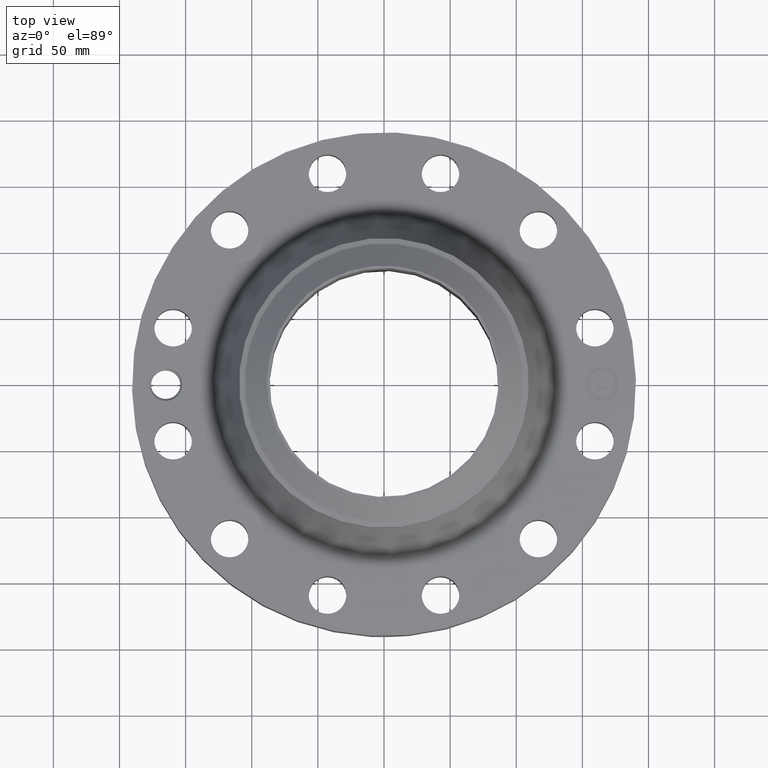
[diagram: clean part render]
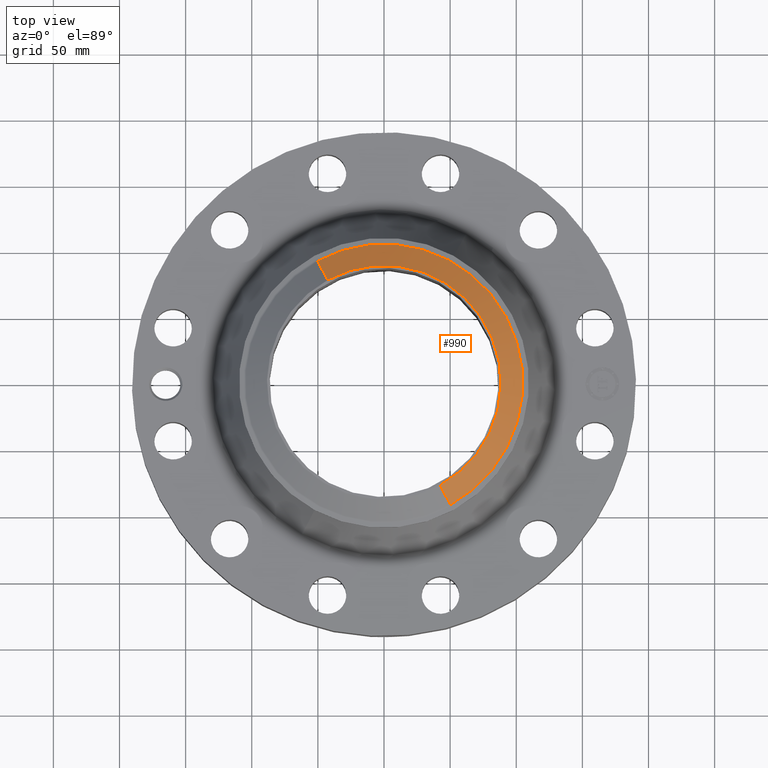
[diagram: same view with one face highlighted and labeled with its STEP entity id]
A machine part, top view. The second image highlights one B-rep face of the part: STEP entity #990.
In plain terms, the highlighted conical surface has half-angle 52.5 deg.
Its self-contained STEP definition (entity closure, byte-faithful):
#515=AXIS2_PLACEMENT_3D('Circle Axis2P3D',#513,#514,$) ;
#951=AXIS2_PLACEMENT_3D('Cone Axis2P3D',#948,#949,#950) ;
#981=AXIS2_PLACEMENT_3D('Circle Axis2P3D',#979,#980,$) ;
#513=CARTESIAN_POINT('Axis2P3D Location',(0.,0.,4.93200000002)) ;
#517=CARTESIAN_POINT('Vertex',(1.67091313967,-3.05858598622,4.93200000002)) ;
#519=CARTESIAN_POINT('Vertex',(-1.67091313967,3.05858598622,4.93200000002)) ;
#948=CARTESIAN_POINT('Axis2P3D Location',(0.,0.,4.93200000002)) ;
#953=CARTESIAN_POINT('Line Origine',(-1.82585444222,3.34220413812,4.68401437258)) ;
#957=CARTESIAN_POINT('Vertex',(-1.98079574477,3.62582229002,4.43602874515)) ;
#964=CARTESIAN_POINT('Vertex',(1.98079574477,-3.62582229002,4.43602874515)) ;
#967=CARTESIAN_POINT('Line Origine',(1.82585444222,-3.34220413812,4.68401437258)) ;
#979=CARTESIAN_POINT('Axis2P3D Location',(0.,0.,4.43602874515)) ;
#514=DIRECTION('Axis2P3D Direction',(0.,0.,-0.0393700787402)) ;
#949=DIRECTION('Axis2P3D Direction',(-0.,-0.,-0.0393700787402)) ;
#950=DIRECTION('Axis2P3D XDirection',(-0.0188750212049,0.0345504945626,0.)) ;
#954=DIRECTION('Vector Direction',(-0.014974561121,0.02741075027,-0.023966985394)) ;
#968=DIRECTION('Vector Direction',(0.014974561121,-0.02741075027,-0.023966985394)) ;
#980=DIRECTION('Axis2P3D Direction',(0.,0.,-0.0393700787402)) ;
#955=VECTOR('Line Direction',#954,0.0393700787402) ;
#969=VECTOR('Line Direction',#968,0.0393700787402) ;
#985=ORIENTED_EDGE('',*,*,#521,.F.) ;
#986=ORIENTED_EDGE('',*,*,#971,.T.) ;
#987=ORIENTED_EDGE('',*,*,#983,.T.) ;
#988=ORIENTED_EDGE('',*,*,#959,.F.) ;
#990=ADVANCED_FACE('PartBody',(#989),#952,.T.) ;
#516=CIRCLE('generated circle',#515,3.48524015749) ;
#982=CIRCLE('generated circle',#981,4.13160248104) ;
#952=CONICAL_SURFACE('Cone',#951,3.48524015749,0.916297857297) ;
#521=EDGE_CURVE('',#518,#520,#516,.F.) ;
#959=EDGE_CURVE('',#520,#958,#956,.T.) ;
#971=EDGE_CURVE('',#518,#965,#970,.T.) ;
#983=EDGE_CURVE('',#965,#958,#982,.F.) ;
#984=EDGE_LOOP('',(#985,#986,#987,#988)) ;
#989=FACE_OUTER_BOUND('',#984,.T.) ;
#956=LINE('Line',#953,#955) ;
#970=LINE('Line',#967,#969) ;
#518=VERTEX_POINT('',#517) ;
#520=VERTEX_POINT('',#519) ;
#958=VERTEX_POINT('',#957) ;
#965=VERTEX_POINT('',#964) ;